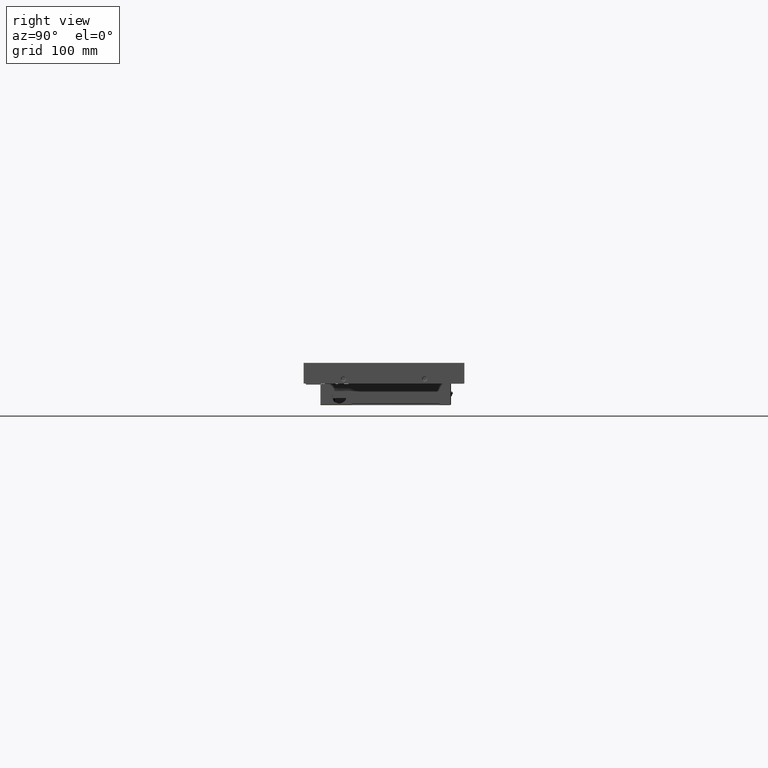
[diagram: clean part render]
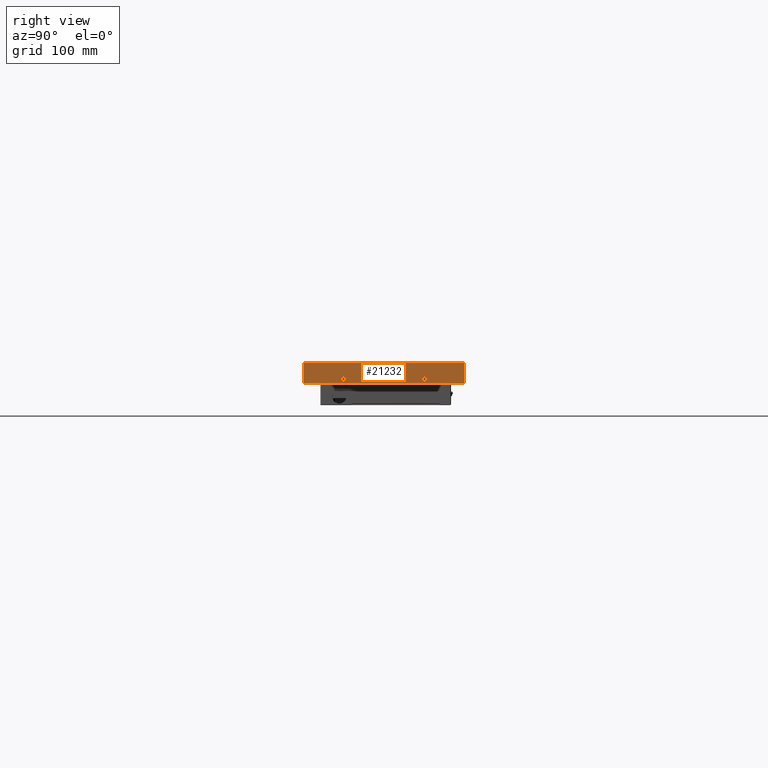
[diagram: same view with one face highlighted and labeled with its STEP entity id]
A machine part, right view. The second image highlights one B-rep face of the part: STEP entity #21232.
In plain terms, the highlighted planar face has unit normal (1, 0, 0).
Its self-contained STEP definition (entity closure, byte-faithful):
#2772 = DIRECTION ( 'NONE',  ( 0.0000000000000000000, 0.0000000000000000000, -1.000000000000000000 ) ) ;
#2773 = DIRECTION ( 'NONE',  ( -1.000000000000000000, -0.0000000000000000000, -0.0000000000000000000 ) ) ;
#2774 = CARTESIAN_POINT ( 'NONE',  ( 368.2999999999765400, -42.00000000000805800, -16.49999999998854600 ) ) ;
#2775 = AXIS2_PLACEMENT_3D ( 'NONE', #2774, #2773, #2772 ) ;
#2779 = CIRCLE ( 'NONE', #2775, 2.549437742364816900 ) ;
#2800 = DIRECTION ( 'NONE',  ( 0.0000000000000000000, 0.0000000000000000000, -1.000000000000000000 ) ) ;
#2801 = DIRECTION ( 'NONE',  ( -1.000000000000000000, -0.0000000000000000000, -0.0000000000000000000 ) ) ;
#2802 = CARTESIAN_POINT ( 'NONE',  ( 368.2999999999765400, 41.99999999999195700, -16.49999999998856000 ) ) ;
#2803 = AXIS2_PLACEMENT_3D ( 'NONE', #2802, #2801, #2800 ) ;
#2804 = CIRCLE ( 'NONE', #2803, 2.549437742307970400 ) ;
#2972 = DIRECTION ( 'NONE',  ( -0.0000000000000000000, 1.000000000000000000, 0.0000000000000000000 ) ) ;
#2973 = VECTOR ( 'NONE', #2972, 1000.000000000000000 ) ;
#2974 = CARTESIAN_POINT ( 'NONE',  ( 368.3000000000000100, -84.81199999999999800, -21.29999999999999700 ) ) ;
#2975 = LINE ( 'NONE', #2974, #2973 ) ;
#3021 = CARTESIAN_POINT ( 'NONE',  ( 368.2999999999968300, 83.15000000000000600, -21.29999999999999700 ) ) ;
#3028 = CARTESIAN_POINT ( 'NONE',  ( 368.3000000000000100, -83.15000000000009100, -21.29999999999999700 ) ) ;
#3662 = DIRECTION ( 'NONE',  ( -0.0000000000000000000, 1.000000000000000000, 0.0000000000000000000 ) ) ;
#3663 = VECTOR ( 'NONE', #3662, 1000.000000000000000 ) ;
#3664 = CARTESIAN_POINT ( 'NONE',  ( 368.2999999999874500, -85.85200000000003200, 0.0000000000000000000 ) ) ;
#3665 = LINE ( 'NONE', #3664, #3663 ) ;
#3690 = DIRECTION ( 'NONE',  ( 0.0000000000000000000, 0.0000000000000000000, -1.000000000000000000 ) ) ;
#3691 = DIRECTION ( 'NONE',  ( 1.000000000000000000, 0.0000000000000000000, 0.0000000000000000000 ) ) ;
#3692 = AXIS2_PLACEMENT_3D ( 'NONE', #3694, #3691, #3690 ) ;
#3694 = CARTESIAN_POINT ( 'NONE',  ( 368.3000000000000100, -84.81199999999999800, -22.20652921783999600 ) ) ;
#3695 = PLANE ( 'NONE',  #3692 ) ;
#3696 = FACE_OUTER_BOUND ( 'NONE', #21310, .T. ) ;
#3697 = FACE_BOUND ( 'NONE', #21302, .T. ) ;
#3698 = FACE_BOUND ( 'NONE', #21238, .T. ) ;
#3746 = LINE ( 'NONE', #3807, #3806 ) ;
#3753 = CARTESIAN_POINT ( 'NONE',  ( 368.2999999999968300, -83.15000000000029000, 0.0000000000000000000 ) ) ;
#3754 = DIRECTION ( 'NONE',  ( -0.0000000000000000000, 0.0000000000000000000, 1.000000000000000000 ) ) ;
#3755 = VECTOR ( 'NONE', #3754, 1000.000000000000000 ) ;
#3756 = CARTESIAN_POINT ( 'NONE',  ( 368.3000000000000100, -83.15000000000000600, -22.20652921783999600 ) ) ;
#3757 = LINE ( 'NONE', #3756, #3755 ) ;
#3804 = CARTESIAN_POINT ( 'NONE',  ( 368.2999999999937600, 83.15000000000000600, 0.0000000000000000000 ) ) ;
#3805 = DIRECTION ( 'NONE',  ( -0.0000000000000000000, -0.0000000000000000000, -1.000000000000000000 ) ) ;
#3806 = VECTOR ( 'NONE', #3805, 1000.000000000000000 ) ;
#3807 = CARTESIAN_POINT ( 'NONE',  ( 368.2999999999873900, 83.15000000000000600, -22.20652921783999600 ) ) ;
#18852 = VERTEX_POINT ( 'NONE', #50697 ) ;
#18854 = VERTEX_POINT ( 'NONE', #50696 ) ;
#18911 = EDGE_CURVE ( 'NONE', #18854, #18852, #50752, .T. ) ;
#18946 = VERTEX_POINT ( 'NONE', #50809 ) ;
#18952 = EDGE_CURVE ( 'NONE', #19005, #18946, #50808, .T. ) ;
#19005 = VERTEX_POINT ( 'NONE', #50821 ) ;
#20523 = EDGE_CURVE ( 'NONE', #18946, #19005, #2779, .T. ) ;
#20549 = EDGE_CURVE ( 'NONE', #18852, #18854, #2804, .T. ) ;
#20698 = EDGE_CURVE ( 'NONE', #20701, #20707, #2975, .T. ) ;
#20701 = VERTEX_POINT ( 'NONE', #3028 ) ;
#20707 = VERTEX_POINT ( 'NONE', #3021 ) ;
#21201 = EDGE_CURVE ( 'NONE', #21321, #21333, #3665, .T. ) ;
#21232 = ADVANCED_FACE ( 'NONE', ( #3698, #3697, #3696 ), #3695, .T. ) ;
#21238 = EDGE_LOOP ( 'NONE', ( #21241, #21243 ) ) ;
#21241 = ORIENTED_EDGE ( 'NONE', *, *, #18911, .T. ) ;
#21243 = ORIENTED_EDGE ( 'NONE', *, *, #20549, .T. ) ;
#21302 = EDGE_LOOP ( 'NONE', ( #21305, #21306 ) ) ;
#21305 = ORIENTED_EDGE ( 'NONE', *, *, #18952, .T. ) ;
#21306 = ORIENTED_EDGE ( 'NONE', *, *, #20523, .T. ) ;
#21310 = EDGE_LOOP ( 'NONE', ( #21315, #21326, #21330, #21336 ) ) ;
#21315 = ORIENTED_EDGE ( 'NONE', *, *, #21319, .F. ) ;
#21319 = EDGE_CURVE ( 'NONE', #20701, #21321, #3757, .T. ) ;
#21321 = VERTEX_POINT ( 'NONE', #3753 ) ;
#21326 = ORIENTED_EDGE ( 'NONE', *, *, #20698, .T. ) ;
#21330 = ORIENTED_EDGE ( 'NONE', *, *, #21331, .F. ) ;
#21331 = EDGE_CURVE ( 'NONE', #21333, #20707, #3746, .T. ) ;
#21333 = VERTEX_POINT ( 'NONE', #3804 ) ;
#21336 = ORIENTED_EDGE ( 'NONE', *, *, #21201, .F. ) ;
#50696 = CARTESIAN_POINT ( 'NONE',  ( 368.2999999999765400, 41.99999999999195700, -19.04943774229652900 ) ) ;
#50697 = CARTESIAN_POINT ( 'NONE',  ( 368.2999999999765400, 41.99999999999195700, -13.95056225768058800 ) ) ;
#50748 = DIRECTION ( 'NONE',  ( 0.0000000000000000000, 0.0000000000000000000, -1.000000000000000000 ) ) ;
#50749 = DIRECTION ( 'NONE',  ( -1.000000000000000000, -0.0000000000000000000, -0.0000000000000000000 ) ) ;
#50750 = CARTESIAN_POINT ( 'NONE',  ( 368.2999999999765400, 41.99999999999195700, -16.49999999998856000 ) ) ;
#50751 = AXIS2_PLACEMENT_3D ( 'NONE', #50750, #50749, #50748 ) ;
#50752 = CIRCLE ( 'NONE', #50751, 2.549437742307970400 ) ;
#50804 = DIRECTION ( 'NONE',  ( 0.0000000000000000000, 0.0000000000000000000, -1.000000000000000000 ) ) ;
#50805 = DIRECTION ( 'NONE',  ( -1.000000000000000000, -0.0000000000000000000, -0.0000000000000000000 ) ) ;
#50806 = CARTESIAN_POINT ( 'NONE',  ( 368.2999999999765400, -42.00000000000805800, -16.49999999998854600 ) ) ;
#50807 = AXIS2_PLACEMENT_3D ( 'NONE', #50806, #50805, #50804 ) ;
#50808 = CIRCLE ( 'NONE', #50807, 2.549437742364816900 ) ;
#50809 = CARTESIAN_POINT ( 'NONE',  ( 368.2999999999765400, -42.00000000000805800, -13.95056225762373000 ) ) ;
#50821 = CARTESIAN_POINT ( 'NONE',  ( 368.2999999999765400, -42.00000000000805800, -19.04943774235336200 ) ) ;